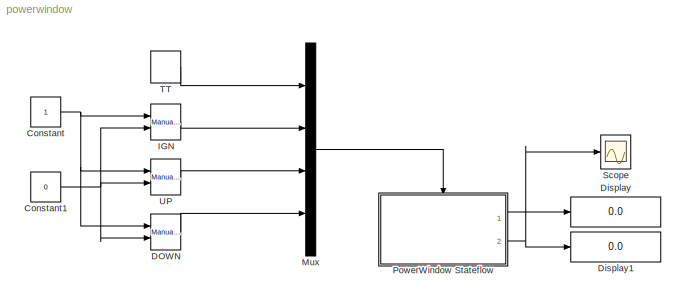
MODEL powerwindow
KIND model
BLOCK [Constant] Constant
  SID = 3
BLOCK [Constant] Constant1
  SID = 4
  Value = 0
BLOCK [Reference] DOWN  REF=simulink/Signal\nRouting/Manual Switch
  Ports = [2, 1]
  SID = 7
  SourceBlock = simulink/Signal\nRouting/Manual Switch
  SourceType = Manual Switch
  action = 0
  sw = 0
  varsize = off
BLOCK [Display] Display
  Decimation = 1
  Lockdown = off
  Ports = [1]
  SID = 9
BLOCK [Display] Display1
  Decimation = 1
  Lockdown = off
  Ports = [1]
  SID = 10
BLOCK [Reference] IGN  REF=simulink/Signal\nRouting/Manual Switch
  Ports = [2, 1]
  SID = 5
  SourceBlock = simulink/Signal\nRouting/Manual Switch
  SourceType = Manual Switch
  action = 0
  sw = 1
  varsize = off
BLOCK [Mux] Mux
  DisplayOption = bar
  Ports = [4, 1]
  SID = 1
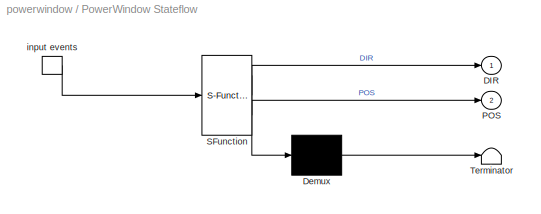
BLOCK [SubSystem] PowerWindow Stateflow
  ErrorFcn = Stateflow.Translate.translate
  FunctionWithSeparateData = off
  MaskDescription = Stateflow diagram
  MaskDisplay = plot(sf('Private','sfblk','xIcon'),sf('Private','sfblk','yIcon'));text(0.5,0,sf('Private', 'sfblk', 'tIcon'),'HorizontalAl','Center','VerticalAl','Bottom');
  MaskHideContents = off
  MaskIconFrame = off
  MaskIconOpaque = off
  MaskIconRotate = none
  MaskIconUnits = normalized
  MaskPortRotate = default
  MaskSelfModifiable = on
  MaskType = Stateflow
  MinAlgLoopOccurrences = off
  Opaque = off
  PermitHierarchicalResolution = ExplicitOnly
  Ports = [0, 2, 0, 1]
  PropExecContextOutsideSubsystem = off
  RTWSystemCode = Auto
  RequestExecContextInheritance = off
  SFBlockType = Chart
  SID = 8
  TreatAsAtomicUnit = on
BLOCK [Demux] PowerWindow Stateflow/ Demux 
  Outputs = 1
  Ports = [1, 1]
  SID = 8::26
BLOCK [S-Function] PowerWindow Stateflow/ SFunction 
  EnableBusSupport = on
  FunctionName = sf_sfun
  PortCounts = [1 3]
  Ports = [1, 3]
  SID = 8::25
  Tag = Stateflow S-Function powerwindow 1
BLOCK [Terminator] PowerWindow Stateflow/ Terminator 
  SID = 8::28
BLOCK [TriggerPort] PowerWindow Stateflow/ input events 
  Ports = [0, 1]
  SID = 8::29
  ShowOutputPort = on
  StatesWhenEnabling = held
  TriggerType = either
BLOCK [Outport] PowerWindow Stateflow/DIR
  IconDisplay = Port number
  SID = 8::30
BLOCK [Outport] PowerWindow Stateflow/POS
  IconDisplay = Port number
  Port = 2
  SID = 8::31
BLOCK [Scope] Scope
  DataFormat = StructureWithTime
  Floating = off
  LimitDataPoints = off
  NumInputPorts = 1
  Ports = [1]
  SID = 11
  SampleTime = 0
  ShowLegends = off
  ZoomMode = xonly
BLOCK [DiscretePulseGenerator] TT
  Period = 1
  Ports = [0, 1]
  PulseType = Time based
  PulseWidth = 50
  SID = 2
BLOCK [Reference] UP  REF=simulink/Signal\nRouting/Manual Switch
  Ports = [2, 1]
  SID = 6
  SourceBlock = simulink/Signal\nRouting/Manual Switch
  SourceType = Manual Switch
  action = 0
  sw = 1
  varsize = off
NET Constant1:1 -> DOWN:2, IGN:2, UP:2
NET Constant:1 -> DOWN:1, IGN:1, UP:1
LINE DOWN:1 -> Mux:4
LINE IGN:1 -> Mux:2
LINE Mux:1 -> PowerWindow Stateflow:trigger
LINE PowerWindow Stateflow/ Demux :1 -> PowerWindow Stateflow/ Terminator :1
LINE PowerWindow Stateflow/ SFunction :1 -> PowerWindow Stateflow/ Demux :1
LINE PowerWindow Stateflow/ SFunction :2 -> PowerWindow Stateflow/DIR:1
LINE PowerWindow Stateflow/ SFunction :3 -> PowerWindow Stateflow/POS:1
LINE PowerWindow Stateflow/ input events :1 -> PowerWindow Stateflow/ SFunction :1
LINE PowerWindow Stateflow:1 -> Display:1
NET PowerWindow Stateflow:2 -> Display1:1, Scope:1
LINE TT:1 -> Mux:1
LINE UP:1 -> Mux:3
note: NET lines group one-source signal fan-out (src -> all destinations, sorted); 1:1 wires keep LINE
CHART PowerWindow Stateflow states=5 transitions=14
  STATE_LABEL 'OFF'
  STATE_LABEL 'ON'
  STATE_LABEL 'STANDSTILL\\nentry:\\nDIR=0;'
  STATE_LABEL 'UP\\nentry:\\nDIR=2;'
  STATE_LABEL 'DOWN\\nentry:\\nDIR=1;'
